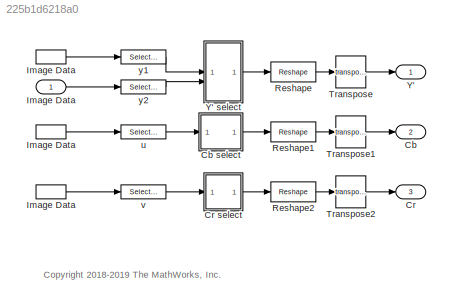
MODEL slx_225b1d6218a0
KIND model
CONFIG AbsTol = auto
CONFIG EnableMultiTasking = on
CONFIG FixedStep = 0.2
CONFIG MaxStep = auto
CONFIG MinStep = auto
CONFIG RelTol = 1e-3
CONFIG SampleTimeConstraint = Unconstrained
CONFIG SolverName = ode3
CONFIG StartTime = 0
CONFIG StopTime = TFinal
BLOCK [InportShadow]  Image Data 
  OutDataTypeStr = uint8
  PortDimensions = [4 9600]
  SampleTime = [0.20000000000000001,0]
  SamplingMode = Sample based
  SignalType = real
BLOCK [Outport] Cb
  OutDataTypeStr = uint8
  Port = 2
  PortDimensions = [120 160]
  SamplingMode = Sample based
  SignalType = real
  VectorParamsAs1DForOutWhenUnconnected = off
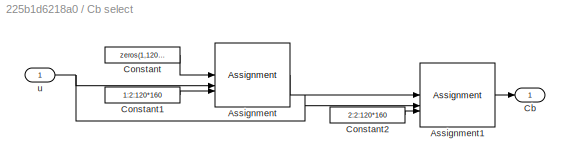
BLOCK [SubSystem] Cb select
BLOCK [Assignment] Cb select/Assignment
  DiagnosticForDimensions = Warning
  IndexOptions = Index vector (port)
  Indices = 1
  OutputSizes = 1
BLOCK [Assignment] Cb select/Assignment1
  DiagnosticForDimensions = Warning
  IndexOptions = Index vector (port)
  Indices = 1
  OutputSizes = 1
BLOCK [Outport] Cb select/Cb
  VectorParamsAs1DForOutWhenUnconnected = off
BLOCK [Constant] Cb select/Constant
  OutDataTypeStr = uint8
  Value = zeros(1,120*160)
BLOCK [Constant] Cb select/Constant1
  Value = 1:2:120*160
BLOCK [Constant] Cb select/Constant2
  Value = 2:2:120*160
BLOCK [Inport] Cb select/u
BLOCK [Outport] Cr
  OutDataTypeStr = uint8
  Port = 3
  PortDimensions = [120 160]
  SamplingMode = Sample based
  SignalType = real
  VectorParamsAs1DForOutWhenUnconnected = off
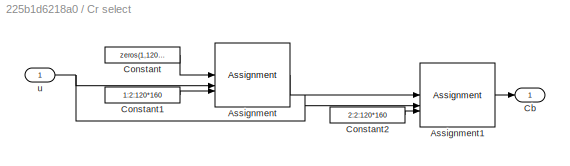
BLOCK [SubSystem] Cr select
BLOCK [Assignment] Cr select/Assignment
  DiagnosticForDimensions = Warning
  IndexOptions = Index vector (port)
  Indices = 1
  OutputSizes = 1
BLOCK [Assignment] Cr select/Assignment1
  DiagnosticForDimensions = Warning
  IndexOptions = Index vector (port)
  Indices = 1
  OutputSizes = 1
BLOCK [Outport] Cr select/Cb
  VectorParamsAs1DForOutWhenUnconnected = off
BLOCK [Constant] Cr select/Constant
  OutDataTypeStr = uint8
  Value = zeros(1,120*160)
BLOCK [Constant] Cr select/Constant1
  Value = 1:2:120*160
BLOCK [Constant] Cr select/Constant2
  Value = 2:2:120*160
BLOCK [Inport] Cr select/u
BLOCK [Inport] Image Data
  OutDataTypeStr = uint8
  PortDimensions = [4 9600]
  SampleTime = [0.20000000000000001,0]
  SamplingMode = Sample based
  SignalType = real
BLOCK [InportShadow] Image Data 
  OutDataTypeStr = uint8
  PortDimensions = [4 9600]
  SampleTime = [0.20000000000000001,0]
  SamplingMode = Sample based
  SignalType = real
BLOCK [InportShadow] Image Data  
  OutDataTypeStr = uint8
  PortDimensions = [4 9600]
  SampleTime = [0.20000000000000001,0]
  SamplingMode = Sample based
  SignalType = real
BLOCK [Reshape] Reshape
  OutputDimensionality = Customize
  OutputDimensions = [160 120]
BLOCK [Reshape] Reshape1
  OutputDimensionality = Customize
  OutputDimensions = [160 120]
BLOCK [Reshape] Reshape2
  OutputDimensionality = Customize
  OutputDimensions = [160 120]
BLOCK [Math] Transpose
  Operator = transpose
  SignedPower = on
BLOCK [Math] Transpose1
  Operator = transpose
  SignedPower = on
BLOCK [Math] Transpose2
  Operator = transpose
  SignedPower = on
BLOCK [Outport] Y'
  OutDataTypeStr = uint8
  PortDimensions = [120 160]
  SamplingMode = Sample based
  SignalType = real
  VectorParamsAs1DForOutWhenUnconnected = off
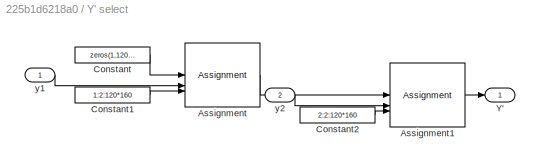
BLOCK [SubSystem] Y' select
BLOCK [Assignment] Y' select/Assignment
  DiagnosticForDimensions = Warning
  IndexOptions = Index vector (port)
  Indices = 1
  OutputSizes = 1
BLOCK [Assignment] Y' select/Assignment1
  DiagnosticForDimensions = Warning
  IndexOptions = Index vector (port)
  Indices = 1
  OutputSizes = 1
BLOCK [Constant] Y' select/Constant
  OutDataTypeStr = uint8
  Value = zeros(1,120*160)
BLOCK [Constant] Y' select/Constant1
  Value = 1:2:120*160
BLOCK [Constant] Y' select/Constant2
  Value = 2:2:120*160
BLOCK [Outport] Y' select/Y'
  VectorParamsAs1DForOutWhenUnconnected = off
BLOCK [Inport] Y' select/y1
BLOCK [Inport] Y' select/y2
  Port = 2
BLOCK [Selector] u
  IndexOptions = Index vector (dialog),Select all
  Indices = 2,1
  InputPortWidth = 3
  NumberOfDimensions = 2
  OutputSizes = 1,1
BLOCK [Selector] v
  IndexOptions = Index vector (dialog),Select all
  Indices = 4,1
  InputPortWidth = 3
  NumberOfDimensions = 2
  OutputSizes = 1,1
BLOCK [Selector] y1
  IndexOptions = Index vector (dialog),Select all
  Indices = 1,1
  InputPortWidth = 3
  NumberOfDimensions = 2
  OutputSizes = 1,1
BLOCK [Selector] y2
  IndexOptions = Index vector (dialog),Select all
  Indices = 3,1
  InputPortWidth = 3
  NumberOfDimensions = 2
  OutputSizes = 1,1
ANNOTATION (root): <copyright redacted>
LINE  Image Data :1 -> v:1
LINE Cb select/Assignment1:1 -> Cb select/Cb:1
LINE Cb select/Assignment:1 -> Cb select/Assignment1:1
LINE Cb select/Constant1:1 -> Cb select/Assignment:3
LINE Cb select/Constant2:1 -> Cb select/Assignment1:3
LINE Cb select/Constant:1 -> Cb select/Assignment:1
NET Cb select/u:1 -> Cb select/Assignment1:2, Cb select/Assignment:2
LINE Cb select:1 -> Reshape1:1
LINE Cr select/Assignment1:1 -> Cr select/Cb:1
LINE Cr select/Assignment:1 -> Cr select/Assignment1:1
LINE Cr select/Constant1:1 -> Cr select/Assignment:3
LINE Cr select/Constant2:1 -> Cr select/Assignment1:3
LINE Cr select/Constant:1 -> Cr select/Assignment:1
NET Cr select/u:1 -> Cr select/Assignment1:2, Cr select/Assignment:2
LINE Cr select:1 -> Reshape2:1
LINE Image Data  :1 -> y1:1
LINE Image Data :1 -> u:1
LINE Image Data:1 -> y2:1
LINE Reshape1:1 -> Transpose1:1
LINE Reshape2:1 -> Transpose2:1
LINE Reshape:1 -> Transpose:1
LINE Transpose1:1 -> Cb:1
LINE Transpose2:1 -> Cr:1
LINE Transpose:1 -> Y':1
LINE Y' select/Assignment1:1 -> Y' select/Y':1
LINE Y' select/Assignment:1 -> Y' select/Assignment1:1
LINE Y' select/Constant1:1 -> Y' select/Assignment:3
LINE Y' select/Constant2:1 -> Y' select/Assignment1:3
LINE Y' select/Constant:1 -> Y' select/Assignment:1
LINE Y' select/y1:1 -> Y' select/Assignment:2
LINE Y' select/y2:1 -> Y' select/Assignment1:2
LINE Y' select:1 -> Reshape:1
LINE u:1 -> Cb select:1
LINE v:1 -> Cr select:1
LINE y1:1 -> Y' select:1
LINE y2:1 -> Y' select:2
note: NET lines group one-source signal fan-out (src -> all destinations, sorted); 1:1 wires keep LINE
